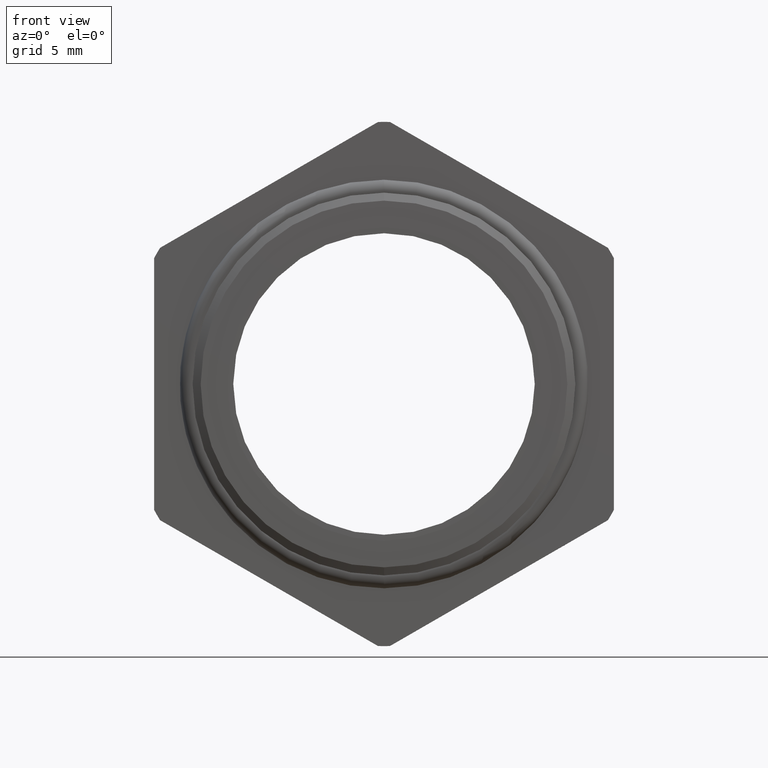
[diagram: clean part render]
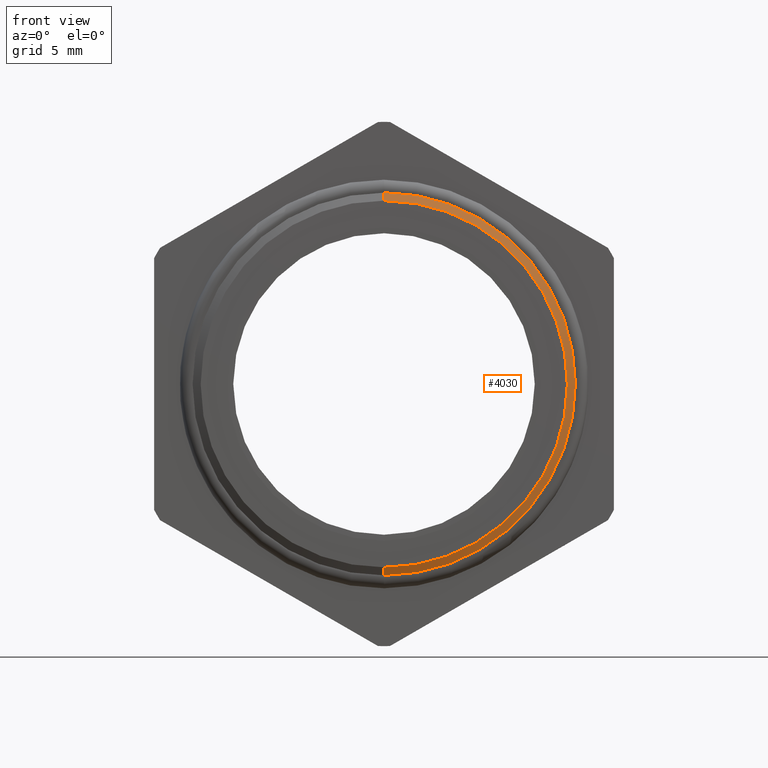
[diagram: same view with one face highlighted and labeled with its STEP entity id]
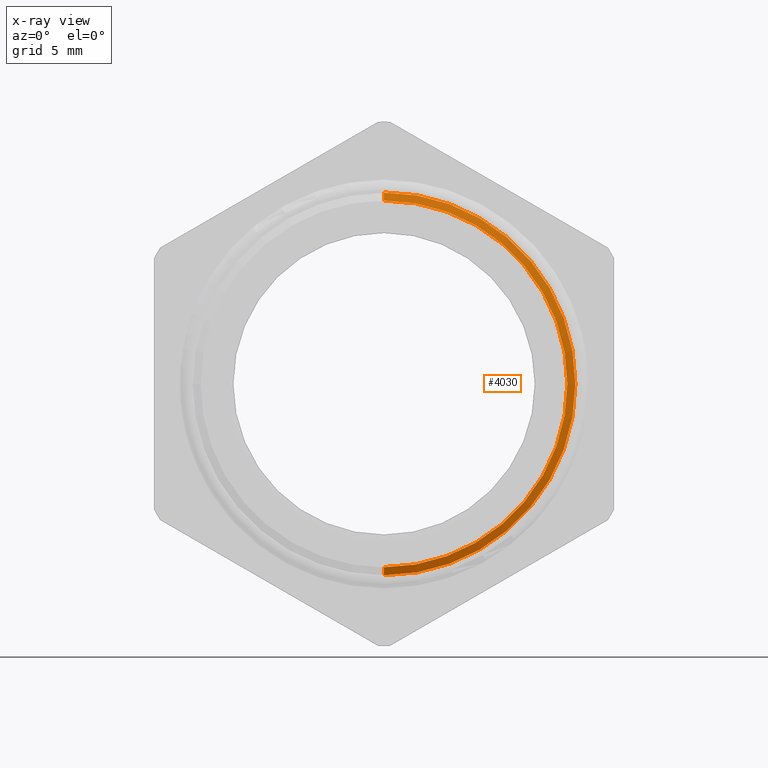
[diagram: x-ray of the same camera — body ghosted, the highlighted face saturated]
A machine part, front view. The second image highlights one B-rep face of the part: STEP entity #4030.
The next image is the same camera in x-ray: the body ghosted, the highlighted face saturated — about 0% of this face is hidden behind the body in this view.
In plain terms, the highlighted conical surface has half-angle 60 deg.
Its self-contained STEP definition (entity closure, byte-faithful):
#517 = EDGE_CURVE ( 'NONE', #4019, #547, #5538, .T. ) ;
#518 = ORIENTED_EDGE ( 'NONE', *, *, #517, .F. ) ;
#547 = VERTEX_POINT ( 'NONE', #5594 ) ;
#549 = ORIENTED_EDGE ( 'NONE', *, *, #554, .F. ) ;
#554 = EDGE_CURVE ( 'NONE', #547, #563, #5646, .T. ) ;
#563 = VERTEX_POINT ( 'NONE', #5626 ) ;
#565 = EDGE_CURVE ( 'NONE', #566, #563, #5678, .T. ) ;
#566 = VERTEX_POINT ( 'NONE', #5674 ) ;
#567 = EDGE_CURVE ( 'NONE', #4019, #566, #5673, .T. ) ;
#568 = ORIENTED_EDGE ( 'NONE', *, *, #565, .T. ) ;
#1951 = CARTESIAN_POINT ( 'NONE',  ( 0.0000000000000000000, 0.02800253635588706100, 0.3150000000000000000 ) ) ;
#1984 = DIRECTION ( 'NONE',  ( 0.0000000000000000000, 0.0000000000000000000, 1.000000000000000000 ) ) ;
#1985 = DIRECTION ( 'NONE',  ( -0.0000000000000000000, 1.000000000000000000, -0.0000000000000000000 ) ) ;
#1986 = AXIS2_PLACEMENT_3D ( 'NONE', #1989, #1985, #1984 ) ;
#1987 = CONICAL_SURFACE ( 'NONE', #1986, 0.3287738815610546400, 1.047197551196596700 ) ;
#1989 = CARTESIAN_POINT ( 'NONE',  ( 0.0000000000000000000, 0.03595489058294800600, 0.0000000000000000000 ) ) ;
#1990 = FACE_OUTER_BOUND ( 'NONE', #4013, .T. ) ;
#4008 = ORIENTED_EDGE ( 'NONE', *, *, #567, .T. ) ;
#4013 = EDGE_LOOP ( 'NONE', ( #4008, #568, #549, #518 ) ) ;
#4019 = VERTEX_POINT ( 'NONE', #1951 ) ;
#4030 = ADVANCED_FACE ( 'NONE', ( #1990 ), #1987, .T. ) ;
#5535 = DIRECTION ( 'NONE',  ( 0.0000000000000000000, 0.5000000000000008900, 0.8660254037844380400 ) ) ;
#5536 = VECTOR ( 'NONE', #5535, 39.37007874015748100 ) ;
#5537 = CARTESIAN_POINT ( 'NONE',  ( 0.0000000000000000000, 0.03595489058294800600, 0.3287738815610546400 ) ) ;
#5538 = LINE ( 'NONE', #5537, #5536 ) ;
#5594 = CARTESIAN_POINT ( 'NONE',  ( 4.026318816969966200E-017, 0.03595489058294800600, 0.3287738815610546400 ) ) ;
#5626 = CARTESIAN_POINT ( 'NONE',  ( 0.0000000000000000000, 0.03595489058294800600, -0.3287738815610546400 ) ) ;
#5642 = DIRECTION ( 'NONE',  ( 0.0000000000000000000, 0.0000000000000000000, 1.000000000000000000 ) ) ;
#5643 = DIRECTION ( 'NONE',  ( -0.0000000000000000000, 1.000000000000000000, -0.0000000000000000000 ) ) ;
#5644 = CARTESIAN_POINT ( 'NONE',  ( 0.0000000000000000000, 0.03595489058294800600, 0.0000000000000000000 ) ) ;
#5645 = AXIS2_PLACEMENT_3D ( 'NONE', #5644, #5643, #5642 ) ;
#5646 = CIRCLE ( 'NONE', #5645, 0.3287738815610546400 ) ;
#5669 = DIRECTION ( 'NONE',  ( 0.0000000000000000000, 0.0000000000000000000, 1.000000000000000000 ) ) ;
#5670 = DIRECTION ( 'NONE',  ( -0.0000000000000000000, 1.000000000000000000, -0.0000000000000000000 ) ) ;
#5671 = CARTESIAN_POINT ( 'NONE',  ( 0.0000000000000000000, 0.02800253635588706100, 0.0000000000000000000 ) ) ;
#5672 = AXIS2_PLACEMENT_3D ( 'NONE', #5671, #5670, #5669 ) ;
#5673 = CIRCLE ( 'NONE', #5672, 0.3150000000000000000 ) ;
#5674 = CARTESIAN_POINT ( 'NONE',  ( 3.857637417314162700E-017, 0.02800253635588706100, -0.3150000000000000000 ) ) ;
#5675 = DIRECTION ( 'NONE',  ( 1.060575238724906300E-016, 0.5000000000000008900, -0.8660254037844380400 ) ) ;
#5676 = VECTOR ( 'NONE', #5675, 39.37007874015748100 ) ;
#5677 = CARTESIAN_POINT ( 'NONE',  ( 4.026318816969965600E-017, 0.03595489058294800600, -0.3287738815610546400 ) ) ;
#5678 = LINE ( 'NONE', #5677, #5676 ) ;